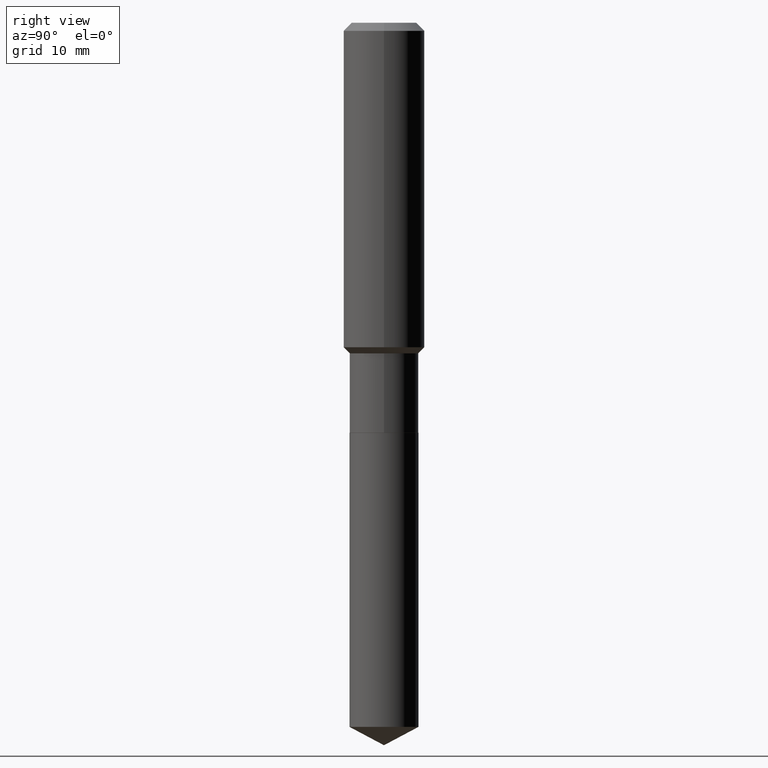
[diagram: clean part render]
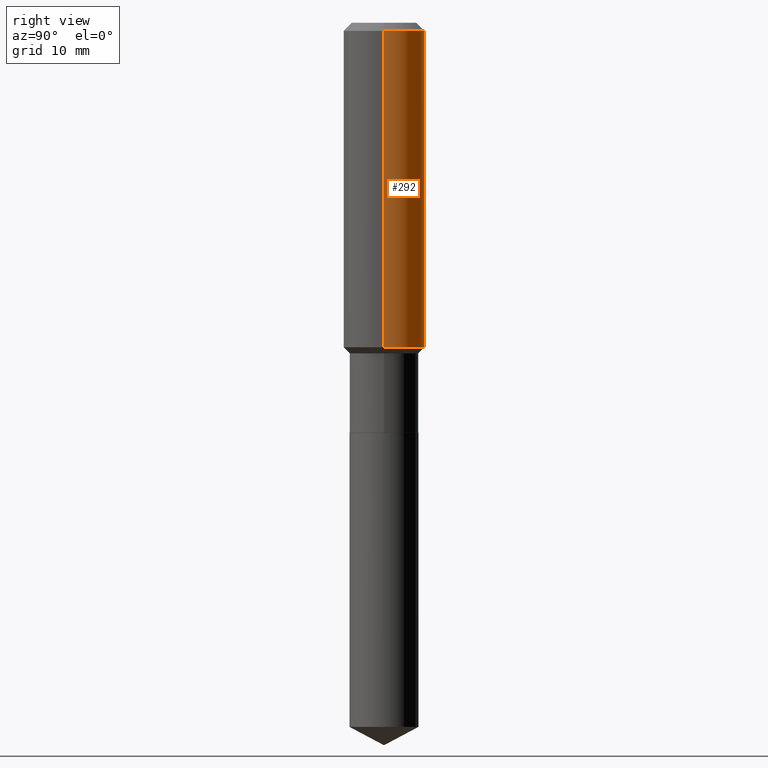
[diagram: same view with one face highlighted and labeled with its STEP entity id]
A machine part, right view. The second image highlights one B-rep face of the part: STEP entity #292.
In plain terms, the highlighted cylindrical surface (partial cylindrical patch) has radius 5 mm, axis along (-0, 0, 1).
Its self-contained STEP definition (entity closure, byte-faithful):
#38 = CARTESIAN_POINT ( 'NONE',  ( 0.1968500000000001082, -1.374596203102542397E-15, 9.598753983154305062E-30 ) ) ;
#40 = CARTESIAN_POINT ( 'NONE',  ( 3.848556533733857239E-29, -5.494718757004399025E-15, -1.573749999999999538 ) ) ;
#44 = DIRECTION ( 'NONE',  ( -2.445468806185136597E-29, 3.491481338843145583E-15, 1.000000000000000000 ) ) ;
#52 = VERTEX_POINT ( 'NONE', #175 ) ;
#61 = AXIS2_PLACEMENT_3D ( 'NONE', #130, #339, #139 ) ;
#81 = AXIS2_PLACEMENT_3D ( 'NONE', #40, #44, #250 ) ;
#82 = VECTOR ( 'NONE', #119, 39.37007874015748143 ) ;
#84 = ORIENTED_EDGE ( 'NONE', *, *, #156, .T. ) ;
#88 = LINE ( 'NONE', #38, #82 ) ;
#111 = ORIENTED_EDGE ( 'NONE', *, *, #160, .T. ) ;
#114 = VERTEX_POINT ( 'NONE', #455 ) ;
#119 = DIRECTION ( 'NONE',  ( -2.445468806185136877E-29, 3.491481338843145188E-15, 1.000000000000000000 ) ) ;
#130 = CARTESIAN_POINT ( 'NONE',  ( 9.627810689950950651E-31, -1.374596203102555808E-16, -0.03937000000000027283 ) ) ;
#132 = ORIENTED_EDGE ( 'NONE', *, *, #402, .F. ) ;
#139 = DIRECTION ( 'NONE',  ( 1.000000000000000000, -6.982962677686265922E-15, 0.000000000000000000 ) ) ;
#150 = CYLINDRICAL_SURFACE ( 'NONE', #472, 0.1968500000000001082 ) ;
#156 = EDGE_CURVE ( 'NONE', #388, #299, #429, .T. ) ;
#160 = EDGE_CURVE ( 'NONE', #114, #388, #439, .T. ) ;
#175 = CARTESIAN_POINT ( 'NONE',  ( 0.1968500000000000250, -1.512055823412797189E-15, -0.03937000000000027283 ) ) ;
#176 = VECTOR ( 'NONE', #389, 39.37007874015748143 ) ;
#217 = EDGE_CURVE ( 'NONE', #52, #299, #476, .T. ) ;
#250 = DIRECTION ( 'NONE',  ( 1.000000000000000000, -6.982962677686265922E-15, 0.000000000000000000 ) ) ;
#262 = CARTESIAN_POINT ( 'NONE',  ( 0.000000000000000000, 0.000000000000000000, 0.000000000000000000 ) ) ;
#276 = CARTESIAN_POINT ( 'NONE',  ( -0.1968500000000002192, -4.096015381660639660E-15, -1.573749999999999538 ) ) ;
#278 = EDGE_LOOP ( 'NONE', ( #111, #84, #342, #132 ) ) ;
#292 = ADVANCED_FACE ( 'NONE', ( #478 ), #150, .T. ) ;
#299 = VERTEX_POINT ( 'NONE', #405 ) ;
#339 = DIRECTION ( 'NONE',  ( -2.445468806185136597E-29, 3.491481338843145583E-15, 1.000000000000000000 ) ) ;
#342 = ORIENTED_EDGE ( 'NONE', *, *, #217, .F. ) ;
#373 = CARTESIAN_POINT ( 'NONE',  ( -0.1968500000000001082, 1.398703375343757985E-15, -9.682923725166787881E-30 ) ) ;
#388 = VERTEX_POINT ( 'NONE', #276 ) ;
#389 = DIRECTION ( 'NONE',  ( -2.445468806185136877E-29, 3.491481338843145188E-15, 1.000000000000000000 ) ) ;
#402 = EDGE_CURVE ( 'NONE', #114, #52, #88, .T. ) ;
#405 = CARTESIAN_POINT ( 'NONE',  ( -0.1968500000000000250, -1.417385813313568924E-15, -0.03937000000000027283 ) ) ;
#406 = DIRECTION ( 'NONE',  ( 1.000000000000000000, -6.982962677686266711E-15, 4.876176775795935793E-29 ) ) ;
#429 = LINE ( 'NONE', #373, #176 ) ;
#439 = CIRCLE ( 'NONE', #81, 0.1968500000000002192 ) ;
#443 = DIRECTION ( 'NONE',  ( -2.445468806185136597E-29, 3.491481338843145583E-15, 1.000000000000000000 ) ) ;
#455 = CARTESIAN_POINT ( 'NONE',  ( 0.1968500000000002192, -6.869314960106940633E-15, -1.573749999999999538 ) ) ;
#472 = AXIS2_PLACEMENT_3D ( 'NONE', #262, #443, #406 ) ;
#476 = CIRCLE ( 'NONE', #61, 0.1968500000000000250 ) ;
#478 = FACE_OUTER_BOUND ( 'NONE', #278, .T. ) ;